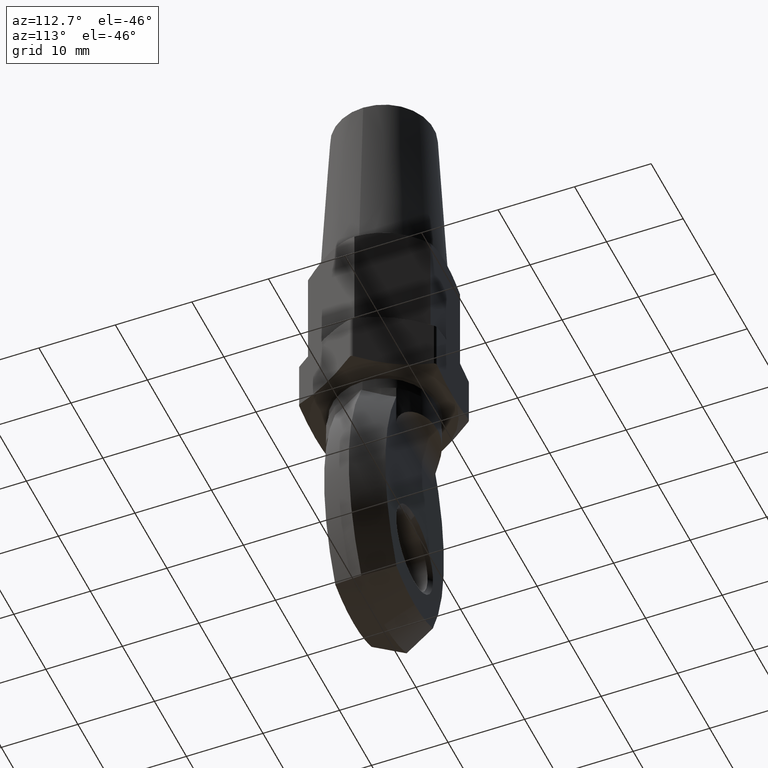
[diagram: clean part render]
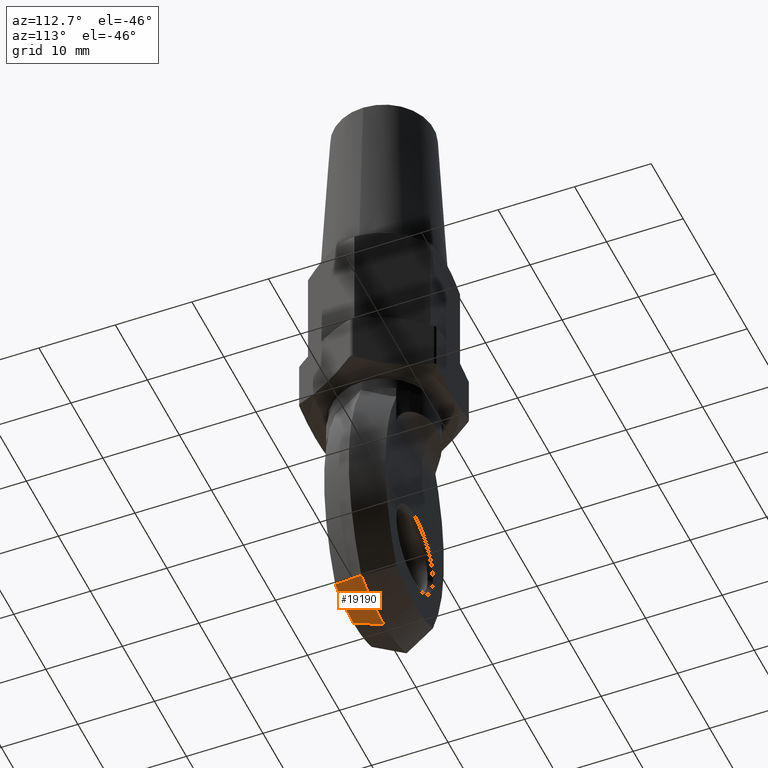
[diagram: same view with one face highlighted and labeled with its STEP entity id]
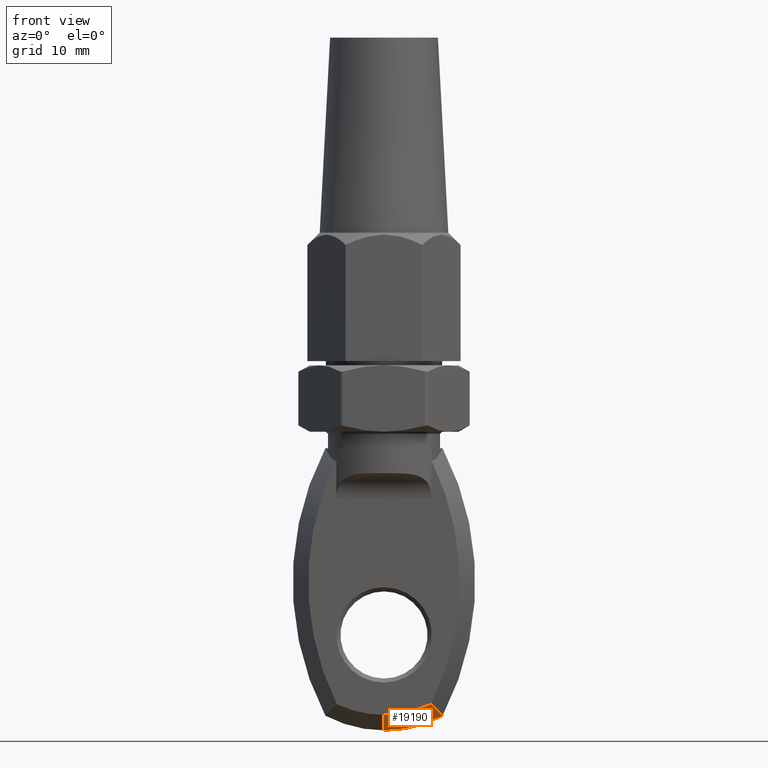
[diagram: same view with one face highlighted and labeled with its STEP entity id]
A machine part, auxiliary view. The second image highlights one B-rep face of the part: STEP entity #19190.
A second angle (front view) of the same face is appended — the face is thin or edge-on in the first view.
In plain terms, the highlighted conical surface has half-angle 25 deg.
Its self-contained STEP definition (entity closure, byte-faithful):
#1355 = EDGE_CURVE ( 'NONE', #14869, #5243, #3794, .T. ) ;
#1414 = CARTESIAN_POINT ( 'NONE',  ( 0.0000000000000000000, -4.000000000000000000, -32.13476936738011600 ) ) ;
#2079 = CARTESIAN_POINT ( 'NONE',  ( 0.0000000000000000000, 0.0000000000000000000, -34.00000000000010700 ) ) ;
#2274 = EDGE_CURVE ( 'NONE', #7612, #2829, #3611, .T. ) ;
#2744 = CARTESIAN_POINT ( 'NONE',  ( 0.0000000000000000000, 0.0000000000000000000, -34.00000000000010700 ) ) ;
#2829 = VERTEX_POINT ( 'NONE', #2079 ) ;
#3170 = CIRCLE ( 'NONE', #8043, 13.13476936738011100 ) ;
#3480 = DIRECTION ( 'NONE',  ( 0.0000000000000000000, 0.0000000000000000000, -1.000000000000000000 ) ) ;
#3611 = LINE ( 'NONE', #2744, #6181 ) ;
#3794 = B_SPLINE_CURVE_WITH_KNOTS ( 'NONE', 3,
 ( #9685, #15537, #11115, #17027 ),
 .UNSPECIFIED., .F., .F.,
 ( 4, 4 ),
 ( 0.0000000000000000000, 0.004455356517817775400 ),
 .UNSPECIFIED. ) ;
#4685 = EDGE_CURVE ( 'NONE', #5243, #2829, #9683, .T. ) ;
#5111 = AXIS2_PLACEMENT_3D ( 'NONE', #8276, #7425, #3480 ) ;
#5243 = VERTEX_POINT ( 'NONE', #8065 ) ;
#6181 = VECTOR ( 'NONE', #14492, 1000.000000000000000 ) ;
#6949 = DIRECTION ( 'NONE',  ( -0.0000000000000000000, 1.000000000000000000, -0.0000000000000000000 ) ) ;
#7345 = ORIENTED_EDGE ( 'NONE', *, *, #1355, .F. ) ;
#7425 = DIRECTION ( 'NONE',  ( 0.0000000000000000000, 1.000000000000000000, -0.0000000000000000000 ) ) ;
#7612 = VERTEX_POINT ( 'NONE', #1414 ) ;
#8043 = AXIS2_PLACEMENT_3D ( 'NONE', #14436, #6949, #10015 ) ;
#8065 = CARTESIAN_POINT ( 'NONE',  ( 7.069490283168394600, 0.0000000000000000000, -32.22959965895381600 ) ) ;
#8276 = CARTESIAN_POINT ( 'NONE',  ( 0.0000000000000000000, 0.0000000000000000000, -19.00000000000000400 ) ) ;
#8438 = EDGE_LOOP ( 'NONE', ( #8537, #17404, #12184, #7345 ) ) ;
#8537 = ORIENTED_EDGE ( 'NONE', *, *, #14075, .T. ) ;
#9048 = CARTESIAN_POINT ( 'NONE',  ( 5.681918644637110400, -4.000000000000000000, -30.84221123143795400 ) ) ;
#9078 = CONICAL_SURFACE ( 'NONE', #10818, 15.00000000000010300, 0.4363323129985826600 ) ;
#9683 = CIRCLE ( 'NONE', #5111, 15.00000000000010300 ) ;
#9685 = CARTESIAN_POINT ( 'NONE',  ( 5.681918644637110400, -4.000000000000000000, -30.84221123143795400 ) ) ;
#10015 = DIRECTION ( 'NONE',  ( -5.329070518200749800E-015, 0.0000000000000000000, -1.000000000000000000 ) ) ;
#10300 = DIRECTION ( 'NONE',  ( -0.0000000000000000000, 1.000000000000000000, -0.0000000000000000000 ) ) ;
#10548 = CARTESIAN_POINT ( 'NONE',  ( 0.0000000000000000000, 0.0000000000000000000, -19.00000000000000400 ) ) ;
#10818 = AXIS2_PLACEMENT_3D ( 'NONE', #10548, #10300, #13338 ) ;
#11115 = CARTESIAN_POINT ( 'NONE',  ( 6.605938529736413900, -1.334563344979647700, -31.77171112412415600 ) ) ;
#12184 = ORIENTED_EDGE ( 'NONE', *, *, #4685, .F. ) ;
#13338 = DIRECTION ( 'NONE',  ( 0.0000000000000000000, 0.0000000000000000000, -1.000000000000000000 ) ) ;
#14075 = EDGE_CURVE ( 'NONE', #14869, #7612, #3170, .T. ) ;
#14436 = CARTESIAN_POINT ( 'NONE',  ( 0.0000000000000000000, -4.000000000000000000, -19.00000000000000400 ) ) ;
#14492 = DIRECTION ( 'NONE',  ( 0.0000000000000000000, 0.9063077870366498300, -0.4226182617406996600 ) ) ;
#14869 = VERTEX_POINT ( 'NONE', #9048 ) ;
#15537 = CARTESIAN_POINT ( 'NONE',  ( 6.143304436799287900, -2.668028565887391700, -31.30973878994047900 ) ) ;
#17027 = CARTESIAN_POINT ( 'NONE',  ( 7.069490283168394600, 0.0000000000000000000, -32.22959965895381600 ) ) ;
#17404 = ORIENTED_EDGE ( 'NONE', *, *, #2274, .T. ) ;
#17470 = FACE_OUTER_BOUND ( 'NONE', #8438, .T. ) ;
#19190 = ADVANCED_FACE ( 'NONE', ( #17470 ), #9078, .T. ) ;